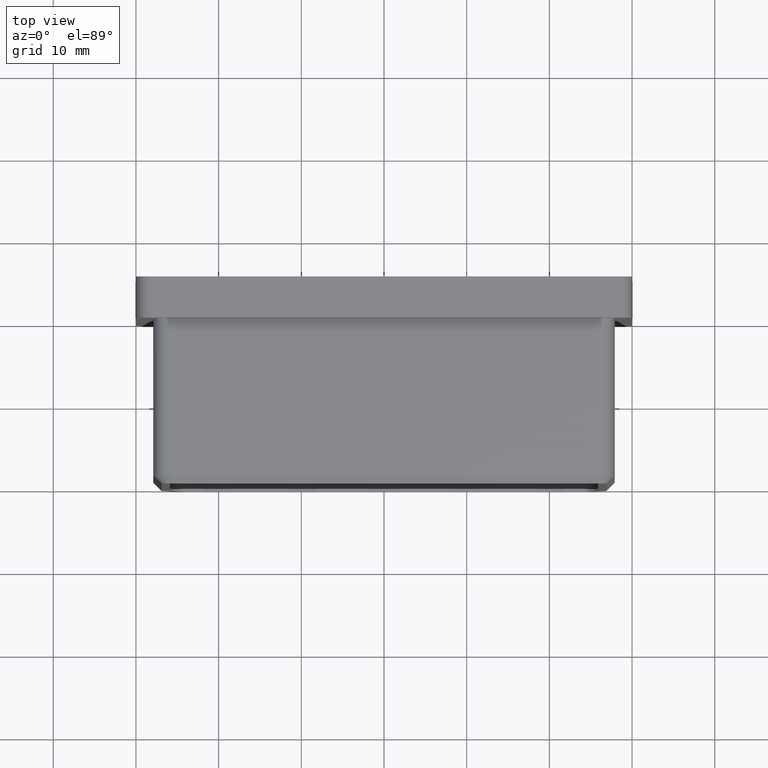
[diagram: clean part render]
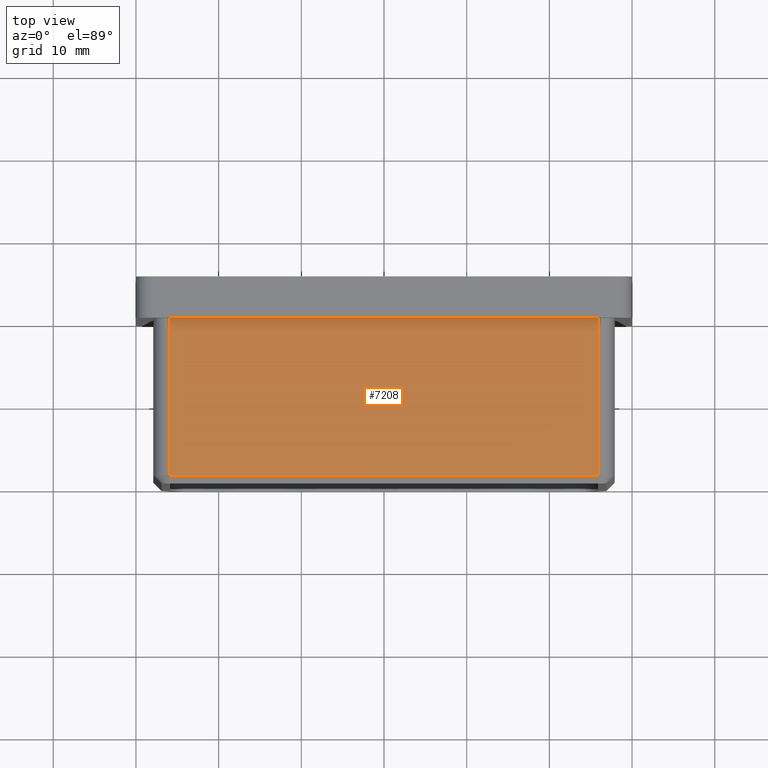
[diagram: same view with one face highlighted and labeled with its STEP entity id]
A machine part, top view. The second image highlights one B-rep face of the part: STEP entity #7208.
In plain terms, the highlighted planar face has unit normal (0, 0, -1).
Its self-contained STEP definition (entity closure, byte-faithful):
#104 = VERTEX_POINT ( 'NONE', #10821 ) ;
#331 = ORIENTED_EDGE ( 'NONE', *, *, #7505, .T. ) ;
#475 = LINE ( 'NONE', #9164, #15151 ) ;
#985 = PLANE ( 'NONE',  #6853 ) ;
#1037 = EDGE_CURVE ( 'NONE', #14874, #10036, #475, .T. ) ;
#1754 = CARTESIAN_POINT ( 'NONE',  ( 25.89999999999999900, 0.0000000000000000000, 27.90000000000000200 ) ) ;
#1794 = LINE ( 'NONE', #12930, #4448 ) ;
#1917 = CARTESIAN_POINT ( 'NONE',  ( -25.89999999999999900, 0.0000000000000000000, 27.90000000000000200 ) ) ;
#2796 = FACE_OUTER_BOUND ( 'NONE', #10934, .T. ) ;
#2810 = CARTESIAN_POINT ( 'NONE',  ( 25.89999999999999900, -20.00000000000000000, 27.90000000000000200 ) ) ;
#3242 = CARTESIAN_POINT ( 'NONE',  ( -25.89999999999999900, -20.00000000000000000, 27.90000000000000200 ) ) ;
#4448 = VECTOR ( 'NONE', #5875, 1000.000000000000000 ) ;
#4680 = LINE ( 'NONE', #2810, #7059 ) ;
#4916 = ORIENTED_EDGE ( 'NONE', *, *, #1037, .T. ) ;
#5460 = ORIENTED_EDGE ( 'NONE', *, *, #8310, .T. ) ;
#5875 = DIRECTION ( 'NONE',  ( 1.000000000000000000, 0.0000000000000000000, 0.0000000000000000000 ) ) ;
#6578 = VERTEX_POINT ( 'NONE', #11943 ) ;
#6744 = DIRECTION ( 'NONE',  ( -1.000000000000000000, -0.0000000000000000000, -0.0000000000000000000 ) ) ;
#6851 = DIRECTION ( 'NONE',  ( -0.0000000000000000000, -1.000000000000000000, -0.0000000000000000000 ) ) ;
#6853 = AXIS2_PLACEMENT_3D ( 'NONE', #12877, #7063, #14116 ) ;
#7059 = VECTOR ( 'NONE', #14825, 1000.000000000000000 ) ;
#7063 = DIRECTION ( 'NONE',  ( 0.0000000000000000000, 0.0000000000000000000, -1.000000000000000000 ) ) ;
#7208 = ADVANCED_FACE ( 'NONE', ( #2796 ), #985, .F. ) ;
#7505 = EDGE_CURVE ( 'NONE', #6578, #14874, #4680, .T. ) ;
#8310 = EDGE_CURVE ( 'NONE', #10036, #104, #9784, .T. ) ;
#9164 = CARTESIAN_POINT ( 'NONE',  ( -27.90000000000000200, 0.0000000000000000000, 27.90000000000000200 ) ) ;
#9784 = LINE ( 'NONE', #3242, #12390 ) ;
#10036 = VERTEX_POINT ( 'NONE', #1917 ) ;
#10821 = CARTESIAN_POINT ( 'NONE',  ( -25.89999999999999900, -19.00000000000000000, 27.90000000000000200 ) ) ;
#10934 = EDGE_LOOP ( 'NONE', ( #5460, #14230, #331, #4916 ) ) ;
#11647 = EDGE_CURVE ( 'NONE', #104, #6578, #1794, .T. ) ;
#11943 = CARTESIAN_POINT ( 'NONE',  ( 25.89999999999999900, -19.00000000000000000, 27.90000000000000200 ) ) ;
#12390 = VECTOR ( 'NONE', #6851, 1000.000000000000000 ) ;
#12877 = CARTESIAN_POINT ( 'NONE',  ( -27.90000000000000200, -20.00000000000000000, 27.90000000000000200 ) ) ;
#12930 = CARTESIAN_POINT ( 'NONE',  ( 25.89999999999999900, -19.00000000000000000, 27.90000000000000200 ) ) ;
#14116 = DIRECTION ( 'NONE',  ( -1.000000000000000000, 0.0000000000000000000, -0.0000000000000000000 ) ) ;
#14230 = ORIENTED_EDGE ( 'NONE', *, *, #11647, .T. ) ;
#14825 = DIRECTION ( 'NONE',  ( 0.0000000000000000000, 1.000000000000000000, 0.0000000000000000000 ) ) ;
#14874 = VERTEX_POINT ( 'NONE', #1754 ) ;
#15151 = VECTOR ( 'NONE', #6744, 1000.000000000000000 ) ;